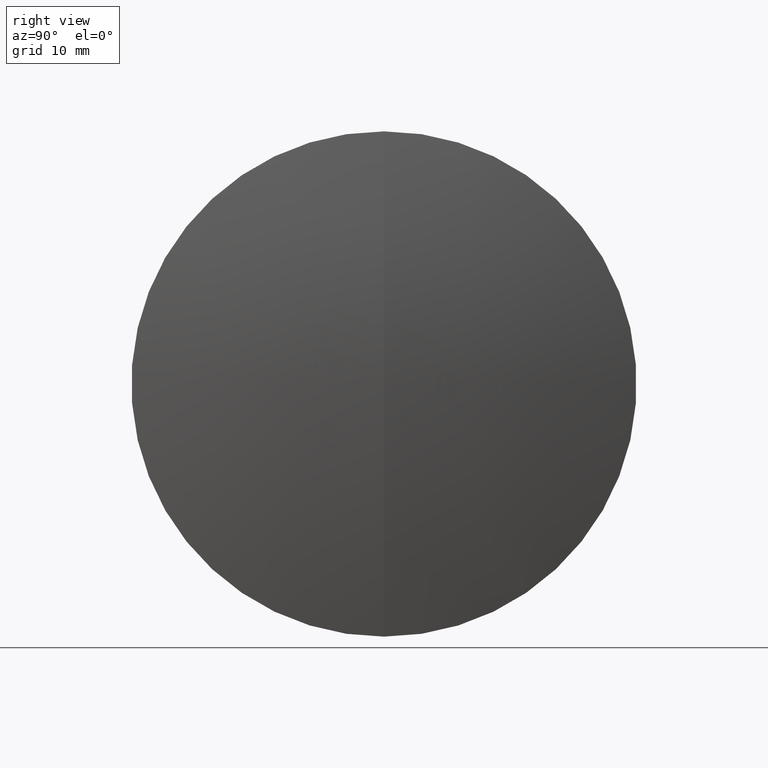
[diagram: clean part render]
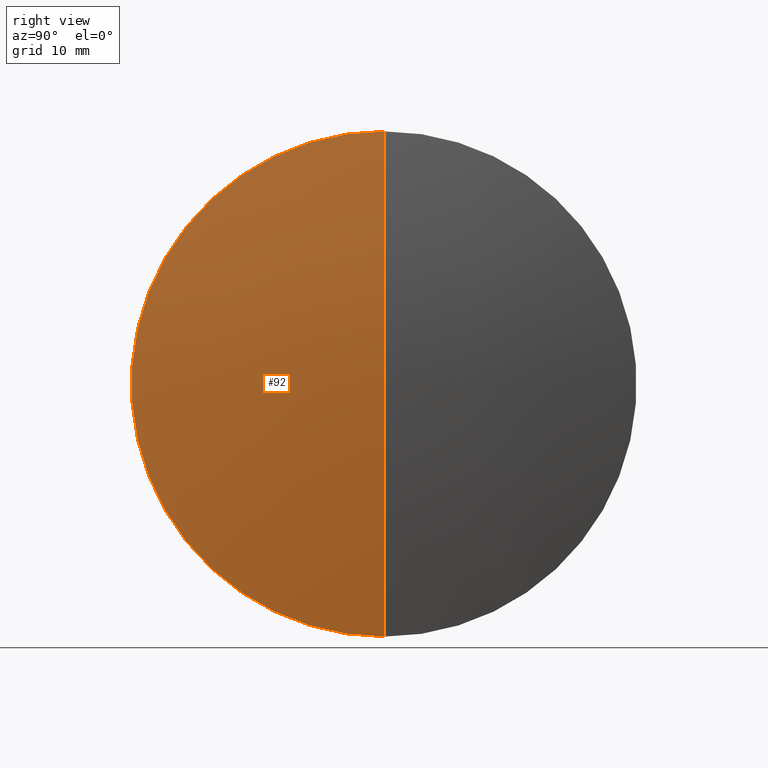
[diagram: same view with one face highlighted and labeled with its STEP entity id]
A machine part, right view. The second image highlights one B-rep face of the part: STEP entity #92.
In plain terms, the highlighted spherical surface has radius 134.592 mm.
Its self-contained STEP definition (entity closure, byte-faithful):
#18 = EDGE_CURVE ( 'NONE', #335, #130, #37, .T. ) ;
#24 = DIRECTION ( 'NONE',  ( -1.000000000000000000, -0.0000000000000000000, -0.0000000000000000000 ) ) ;
#29 = CIRCLE ( 'NONE', #207, 134.5920000000000100 ) ;
#30 = CARTESIAN_POINT ( 'NONE',  ( 97.09345515742958800, 0.0000000000000000000, 0.0000000000000000000 ) ) ;
#31 = VERTEX_POINT ( 'NONE', #194 ) ;
#37 = CIRCLE ( 'NONE', #131, 25.00000000000001100 ) ;
#51 = EDGE_CURVE ( 'NONE', #31, #335, #29, .T. ) ;
#56 = CIRCLE ( 'NONE', #230, 134.5920000000000100 ) ;
#88 = CARTESIAN_POINT ( 'NONE',  ( 97.09345515742958800, 0.0000000000000000000, 0.0000000000000000000 ) ) ;
#92 = ADVANCED_FACE ( 'NONE', ( #265 ), #233, .T. ) ;
#101 = CARTESIAN_POINT ( 'NONE',  ( 229.3432433009272400, 3.061616997868384200E-015, -25.00000000000001100 ) ) ;
#130 = VERTEX_POINT ( 'NONE', #148 ) ;
#131 = AXIS2_PLACEMENT_3D ( 'NONE', #254, #24, #274 ) ;
#132 = AXIS2_PLACEMENT_3D ( 'NONE', #88, #309, #267 ) ;
#148 = CARTESIAN_POINT ( 'NONE',  ( 229.3432433009272400, 0.0000000000000000000, 25.00000000000001100 ) ) ;
#179 = DIRECTION ( 'NONE',  ( 0.0000000000000000000, -1.000000000000000000, 0.0000000000000000000 ) ) ;
#182 = ORIENTED_EDGE ( 'NONE', *, *, #51, .F. ) ;
#194 = CARTESIAN_POINT ( 'NONE',  ( 231.6854551574296000, 0.0000000000000000000, 8.241383099542028400E-015 ) ) ;
#207 = AXIS2_PLACEMENT_3D ( 'NONE', #30, #266, #252 ) ;
#230 = AXIS2_PLACEMENT_3D ( 'NONE', #318, #179, #258 ) ;
#233 = SPHERICAL_SURFACE ( 'NONE', #132, 134.5920000000000100 ) ;
#250 = EDGE_CURVE ( 'NONE', #31, #130, #56, .T. ) ;
#252 = DIRECTION ( 'NONE',  ( 0.0000000000000000000, -1.224646799147353200E-016, 1.000000000000000000 ) ) ;
#253 = ORIENTED_EDGE ( 'NONE', *, *, #250, .T. ) ;
#254 = CARTESIAN_POINT ( 'NONE',  ( 229.3432433009272400, 0.0000000000000000000, 0.0000000000000000000 ) ) ;
#258 = DIRECTION ( 'NONE',  ( 0.0000000000000000000, 0.0000000000000000000, -1.000000000000000000 ) ) ;
#263 = ORIENTED_EDGE ( 'NONE', *, *, #18, .F. ) ;
#265 = FACE_OUTER_BOUND ( 'NONE', #327, .T. ) ;
#266 = DIRECTION ( 'NONE',  ( -0.0000000000000000000, 1.000000000000000000, 1.224646799147353200E-016 ) ) ;
#267 = DIRECTION ( 'NONE',  ( 0.0000000000000000000, 0.0000000000000000000, 1.000000000000000000 ) ) ;
#274 = DIRECTION ( 'NONE',  ( 0.0000000000000000000, 0.0000000000000000000, 1.000000000000000000 ) ) ;
#309 = DIRECTION ( 'NONE',  ( 0.0000000000000000000, 1.000000000000000000, 0.0000000000000000000 ) ) ;
#318 = CARTESIAN_POINT ( 'NONE',  ( 97.09345515742958800, 0.0000000000000000000, 0.0000000000000000000 ) ) ;
#327 = EDGE_LOOP ( 'NONE', ( #182, #253, #263 ) ) ;
#335 = VERTEX_POINT ( 'NONE', #101 ) ;